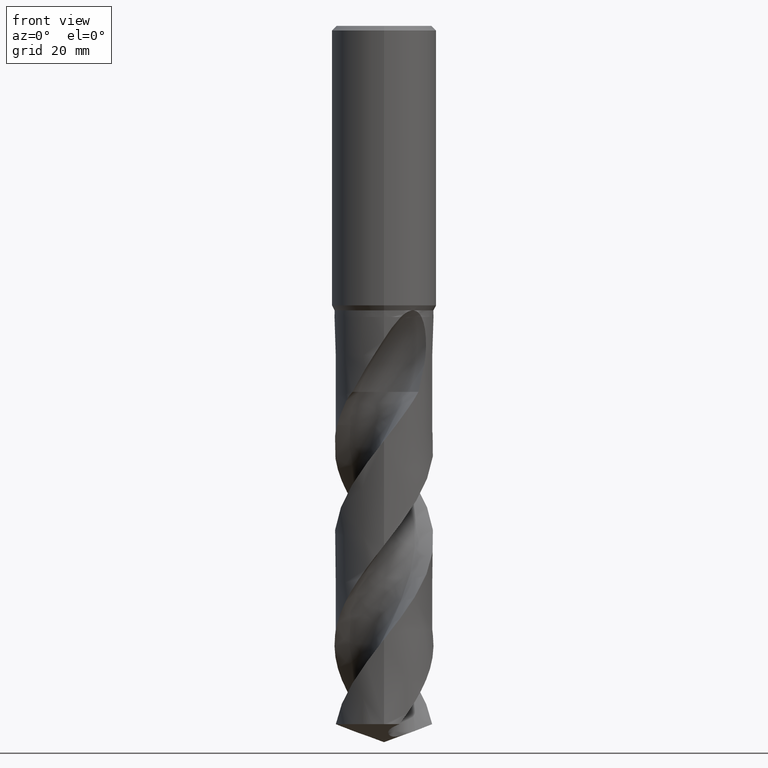
[diagram: clean part render]
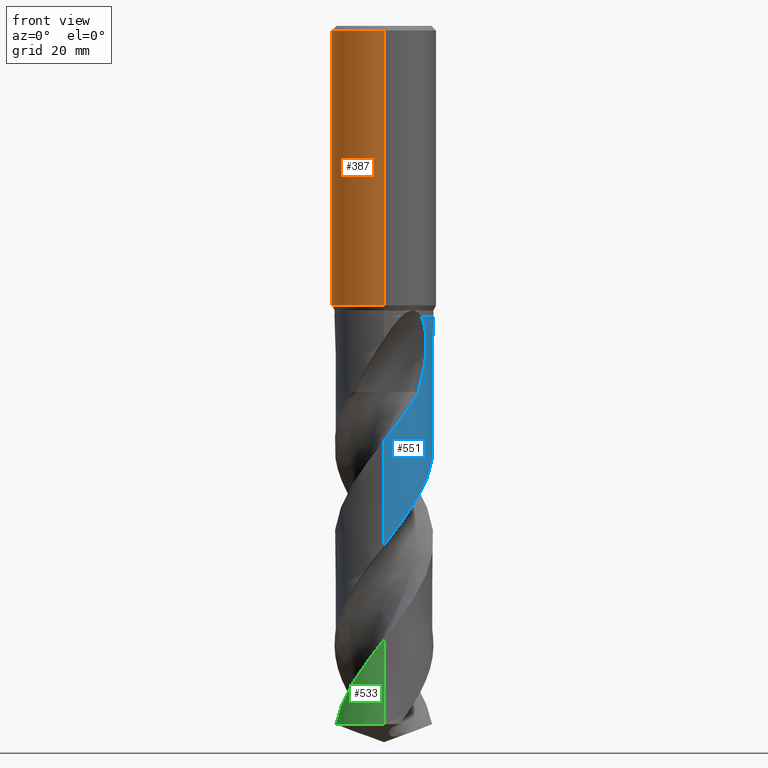
[diagram: same view with three faces highlighted in distinct colors, each labeled with its STEP entity id]
A machine part, front view with three faces highlighted in distinct colors.
Their STEP definitions:

[orange] entity #387 — the highlighted cylindrical surface (partial cylindrical patch) has radius 9 mm, axis along (-0, -0, 1).
#279=VERTEX_POINT('',#786);
#337=EDGE_CURVE('',#651,#607,#851,.T.);
#339=EDGE_CURVE('',#579,#441,#853,.T.);
#349=VERTEX_POINT('',#865);
#387=ADVANCED_FACE('',(#906),#907,.T.);
#391=VERTEX_POINT('',#911);
#437=EDGE_CURVE('',#607,#455,#960,.T.);
#441=VERTEX_POINT('',#964);
#447=EDGE_CURVE('',#441,#349,#971,.T.);
#455=VERTEX_POINT('',#980);
#477=EDGE_CURVE('',#693,#279,#1007,.T.);
#499=EDGE_CURVE('',#611,#693,#1029,.T.);
#545=EDGE_CURVE('',#455,#601,#1082,.T.);
#579=VERTEX_POINT('',#1118);
#601=VERTEX_POINT('',#1142);
#607=VERTEX_POINT('',#1148);
#611=VERTEX_POINT('',#1152);
#637=EDGE_CURVE('',#349,#653,#1181,.T.);
#641=EDGE_CURVE('',#653,#611,#1185,.T.);
#651=VERTEX_POINT('',#1195);
#653=VERTEX_POINT('',#1197);
#659=EDGE_CURVE('',#391,#579,#1203,.T.);
#671=EDGE_CURVE('',#601,#391,#1216,.T.);
#693=VERTEX_POINT('',#1242);
#749=EDGE_CURVE('',#651,#279,#1301,.T.);
#786=CARTESIAN_POINT('',(0.0,9.0,-48.0));
#851=LINE('',#2682,#2683);
#853=CIRCLE('',#2686,9.0);
#865=CARTESIAN_POINT('',(5.30368129032677E-016,9.0,-44.5000801551881));
#906=FACE_OUTER_BOUND('',#2991,.T.);
#907=CYLINDRICAL_SURFACE('',#2992,9.0);
#911=CARTESIAN_POINT('',(-0.486378944383046,8.9868479191795,-43.6432837483006));
#960=CIRCLE('',#3981,9.0);
#964=CARTESIAN_POINT('',(-1.0350734039088,8.94028092671146,-43.3171221986971));
#971=B_SPLINE_CURVE_WITH_KNOTS('',3,(#4001,#4002,#4003,#4004,#4005,#4006,#4007,#4008,#4009,#4010,#4011,#4012,#4013,#4014),.UNSPECIFIED.,.F.,.F.,(4,2,2,2,2,2,4),(3.12369059133893,3.5698502802927,4.01600996924647,4.46216965820024,4.90805548797838,5.35394131775651,5.80058045946212),.UNSPECIFIED.);
#980=CARTESIAN_POINT('',(0.0,9.0,-0.799999999999997));
#1007=LINE('',#4173,#4174);
#1029=B_SPLINE_CURVE_WITH_KNOTS('',3,(#4294,#4295,#4296,#4297,#4298,#4299,#4300,#4301,#4302,#4303,#4304,#4305,#4306,#4307,#4308,#4309),.UNSPECIFIED.,.F.,.F.,(4,2,2,2,2,2,2,4),(5.84212605398706,6.14961712011921,6.45715936065203,6.76470160118484,7.07224384171766,7.37978608225048,7.68719068283064,7.9945952834108),.UNSPECIFIED.);
#1082=LINE('',#4382,#4383);
#1118=CARTESIAN_POINT('',(-0.562333990228013,8.98241506964771,-43.3171221986971));
#1142=CARTESIAN_POINT('',(-3.96293483452168E-015,9.0,-44.0232688117743));
#1148=CARTESIAN_POINT('',(1.10214571844014E-015,-9.0,-0.799999999999997));
#1152=CARTESIAN_POINT('',(-1.337052752443,8.90012864722666,-45.3720803908795));
#1181=LINE('',#4615,#4616);
#1185=ELLIPSE('',#4635,10.0343558883857,9.0);
#1195=CARTESIAN_POINT('',(1.10214571844014E-015,-9.0,-48.0));
#1197=CARTESIAN_POINT('',(1.71597682159822E-015,9.0,-44.7128911336578));
#1203=B_SPLINE_CURVE_WITH_KNOTS('',3,(#4674,#4675,#4676,#4677,#4678,#4679,#4680,#4681,#4682,#4683,#4684,#4685,#4686,#4687,#4688,#4689,#4690,#4691,#4692,#4693,#4694,#4695,#4696,#4697,#4698,#4699,#4700),.UNSPECIFIED.,.F.,.F.,(4,2,3,2,2,2,2,2,2,2,2,2,4),(-0.541854963380013,-0.270927481690006,0.0,0.270927481690006,0.541854963380013,0.812958943580423,1.08406292378083,1.35487393624635,1.62568494871187,1.89658247681333,2.1674800049148,2.43837753301627,2.70927506111774),.UNSPECIFIED.);
#1216=B_SPLINE_CURVE_WITH_KNOTS('',3,(#4756,#4757,#4758,#4759,#4760,#4761,#4762,#4763,#4764,#4765,#4766,#4767,#4768,#4769,#4770,#4771,#4772,#4773,#4774,#4775,#4776,#4777,#4778,#4779,#4780,#4781,#4782),.UNSPECIFIED.,.F.,.F.,(4,2,3,2,2,2,2,2,2,2,2,2,4),(-0.541854963380013,-0.270927481690006,0.0,0.270927481690006,0.541854963380013,0.812958943580423,1.08406292378083,1.35487393624635,1.62568494871187,1.89658247681333,2.1674800049148,2.43837753301627,2.70927506111774),.UNSPECIFIED.);
#1242=CARTESIAN_POINT('',(8.69674988129566E-017,9.0,-46.0310253601033));
#1301=CIRCLE('',#5421,9.0);
#2682=CARTESIAN_POINT('',(1.10214571844014E-015,-9.0,-24.4));
#2683=VECTOR('',#5641,1.0);
#2686=AXIS2_PLACEMENT_3D('',#5642,#5643,#5644);
#2991=EDGE_LOOP('',(#5696,#5697,#5698,#5699,#5700,#5701,#5702,#5703,#5704,#5705,#5706,#5707));
#2992=AXIS2_PLACEMENT_3D('',#5708,#5709,#5710);
#3981=AXIS2_PLACEMENT_3D('',#5752,#5753,#5754);
#4001=CARTESIAN_POINT('',(-0.944943040271774,8.95025601034082,-42.873295414643));
#4002=CARTESIAN_POINT('',(-1.00535534992232,8.94387784802797,-43.0190431598199));
#4003=CARTESIAN_POINT('',(-1.03510901790186,8.94027680338021,-43.1775819644149));
#4004=CARTESIAN_POINT('',(-1.03510901790186,8.94027680338021,-43.4750217570507));
#4005=CARTESIAN_POINT('',(-1.00535534992232,8.94387784802797,-43.6335605616457));
#4006=CARTESIAN_POINT('',(-0.88453073062123,8.95663417265367,-43.9250560519995));
#4007=CARTESIAN_POINT('',(-0.793467054293891,8.96557334482349,-44.0580251702397));
#4008=CARTESIAN_POINT('',(-0.583479661408346,8.98168320725981,-44.2679344395132));
#4009=CARTESIAN_POINT('',(-0.450534542630435,8.98989837995421,-44.3589330592736));
#4010=CARTESIAN_POINT('',(-0.159125047888316,8.99977407908985,-44.4796536614785));
#4011=CARTESIAN_POINT('',(-0.000650772532612198,9.00122714079495,-44.5093686300866));
#4012=CARTESIAN_POINT('',(0.296817345477663,8.99633617828031,-44.5093686300866));
#4013=CARTESIAN_POINT('',(0.455407678070731,8.98965728579467,-44.4795637956187));
#4014=CARTESIAN_POINT('',(0.601144045560449,8.9799012152967,-44.4191280882646));
#4173=CARTESIAN_POINT('',(-1.10214571844014E-015,9.0,-24.4));
#4174=VECTOR('',#5845,1.0);
#4294=CARTESIAN_POINT('',(-1.37972167599854,8.89361389406915,-45.3116598497038));
#4295=CARTESIAN_POINT('',(-1.31997654876768,8.90288252749667,-45.4004745075963));
#4296=CARTESIAN_POINT('',(-1.25222527016166,8.91275656771046,-45.4820158876704));
#4297=CARTESIAN_POINT('',(-1.10789856600508,8.93184529050157,-45.6263591423228));
#4298=CARTESIAN_POINT('',(-1.02635161633353,8.94173240167489,-45.6941286367988));
#4299=CARTESIAN_POINT('',(-0.848706654054937,8.96033888861573,-45.8136513633258));
#4300=CARTESIAN_POINT('',(-0.752612156295056,8.96904039878896,-45.8654125998122));
#4301=CARTESIAN_POINT('',(-0.552036819579822,8.98361653687793,-45.948602883649));
#4302=CARTESIAN_POINT('',(-0.44739213308708,8.98949065583308,-45.9800979655266));
#4303=CARTESIAN_POINT('',(-0.236812635405349,8.99750086122647,-46.0214375430714));
#4304=CARTESIAN_POINT('',(-0.130875740487602,8.99963225233045,-46.0312723335086));
#4305=CARTESIAN_POINT('',(0.0741055220392617,9.00027822368032,-46.0312723335086));
#4306=CARTESIAN_POINT('',(0.180008098918982,8.99881598924858,-46.0214461889762));
#4307=CARTESIAN_POINT('',(0.390540563619322,8.99213935569284,-45.9801300336401));
#4308=CARTESIAN_POINT('',(0.495172471718919,8.98692967010796,-45.9486495564687));
#4309=CARTESIAN_POINT('',(0.595454366750798,8.9802802905654,-45.9070681979483));
#4382=CARTESIAN_POINT('',(-1.10214571844014E-015,9.0,-24.4));
#4383=VECTOR('',#5921,1.0);
#4615=CARTESIAN_POINT('',(-1.10214571844014E-015,9.0,-24.4));
#4616=VECTOR('',#6031,1.0);
#4635=AXIS2_PLACEMENT_3D('',#6032,#6033,#6034);
#4674=CARTESIAN_POINT('',(0.664932075041688,8.97540335225001,-42.8134055156165));
#4675=CARTESIAN_POINT('',(0.728692270346937,8.97067975406668,-42.8771869360812));
#4676=CARTESIAN_POINT('',(0.783987727658247,8.96586414078747,-42.9579708136456));
#4677=CARTESIAN_POINT('',(0.857343604339849,8.9591471969663,-43.135041642855));
#4678=CARTESIAN_POINT('',(0.875400981188567,8.957325109771,-43.2313328520234));
#4679=CARTESIAN_POINT('',(0.875400981188567,8.957325109771,-43.3216420125868));
#4680=CARTESIAN_POINT('',(0.875400981188567,8.957325109771,-43.4119511731501));
#4681=CARTESIAN_POINT('',(0.857343604339849,8.9591471969663,-43.5082423823186));
#4682=CARTESIAN_POINT('',(0.783987727658247,8.96586414078747,-43.6853132115279));
#4683=CARTESIAN_POINT('',(0.728692270346938,8.97067975406668,-43.7660970890924));
#4684=CARTESIAN_POINT('',(0.601130342497664,8.98013002767025,-43.8937014810878));
#4685=CARTESIAN_POINT('',(0.520325165375597,8.98538384805082,-43.9490345783732));
#4686=CARTESIAN_POINT('',(0.343202811107031,8.99389087129846,-44.0224436215851));
#4687=CARTESIAN_POINT('',(0.246880716317626,8.99706709356675,-44.0405166027747));
#4688=CARTESIAN_POINT('',(0.0662697068249511,9.00020872312346,-44.0405166027747));
#4689=CARTESIAN_POINT('',(-0.0300073000340085,9.00038564871037,-44.0224785355421));
#4690=CARTESIAN_POINT('',(-0.207105044312616,8.99805255398262,-43.9491281309434));
#4691=CARTESIAN_POINT('',(-0.287927260934903,8.99561983652438,-43.8938169265412));
#4692=CARTESIAN_POINT('',(-0.415574000165431,8.99062729777371,-43.7661974384748));
#4693=CARTESIAN_POINT('',(-0.470907536906384,8.98774703849931,-43.6853689338355));
#4694=CARTESIAN_POINT('',(-0.544295304958349,8.98360135804205,-43.5082419972217));
#4695=CARTESIAN_POINT('',(-0.562348199187247,8.98241418010052,-43.4119411886206));
#4696=CARTESIAN_POINT('',(-0.562348199187247,8.98241418010052,-43.231342836553));
#4697=CARTESIAN_POINT('',(-0.544295304958349,8.98360135804205,-43.1350420279518));
#4698=CARTESIAN_POINT('',(-0.470907536906384,8.98774703849931,-42.957915091338));
#4699=CARTESIAN_POINT('',(-0.415574000165432,8.99062729777371,-42.8770865866988));
#4700=CARTESIAN_POINT('',(-0.351740437394629,8.9931239658253,-42.8132666516862));
#4756=CARTESIAN_POINT('',(0.664932075041688,8.97540335225001,-42.8134055156165));
#4757=CARTESIAN_POINT('',(0.728692270346937,8.97067975406668,-42.8771869360812));
#4758=CARTESIAN_POINT('',(0.783987727658247,8.96586414078747,-42.9579708136456));
#4759=CARTESIAN_POINT('',(0.857343604339849,8.9591471969663,-43.135041642855));
#4760=CARTESIAN_POINT('',(0.875400981188567,8.957325109771,-43.2313328520234));
#4761=CARTESIAN_POINT('',(0.875400981188567,8.957325109771,-43.3216420125868));
#4762=CARTESIAN_POINT('',(0.875400981188567,8.957325109771,-43.4119511731501));
#4763=CARTESIAN_POINT('',(0.857343604339849,8.9591471969663,-43.5082423823186));
#4764=CARTESIAN_POINT('',(0.783987727658247,8.96586414078747,-43.6853132115279));
#4765=CARTESIAN_POINT('',(0.728692270346938,8.97067975406668,-43.7660970890924));
#4766=CARTESIAN_POINT('',(0.601130342497664,8.98013002767025,-43.8937014810878));
#4767=CARTESIAN_POINT('',(0.520325165375597,8.98538384805082,-43.9490345783732));
#4768=CARTESIAN_POINT('',(0.343202811107031,8.99389087129846,-44.0224436215851));
#4769=CARTESIAN_POINT('',(0.246880716317626,8.99706709356675,-44.0405166027747));
#4770=CARTESIAN_POINT('',(0.0662697068249511,9.00020872312346,-44.0405166027747));
#4771=CARTESIAN_POINT('',(-0.0300073000340085,9.00038564871037,-44.0224785355421));
#4772=CARTESIAN_POINT('',(-0.207105044312616,8.99805255398262,-43.9491281309434));
#4773=CARTESIAN_POINT('',(-0.287927260934903,8.99561983652438,-43.8938169265412));
#4774=CARTESIAN_POINT('',(-0.415574000165431,8.99062729777371,-43.7661974384748));
#4775=CARTESIAN_POINT('',(-0.470907536906384,8.98774703849931,-43.6853689338355));
#4776=CARTESIAN_POINT('',(-0.544295304958349,8.98360135804205,-43.5082419972217));
#4777=CARTESIAN_POINT('',(-0.562348199187247,8.98241418010052,-43.4119411886206));
#4778=CARTESIAN_POINT('',(-0.562348199187247,8.98241418010052,-43.231342836553));
#4779=CARTESIAN_POINT('',(-0.544295304958349,8.98360135804205,-43.1350420279518));
#4780=CARTESIAN_POINT('',(-0.470907536906384,8.98774703849931,-42.957915091338));
#4781=CARTESIAN_POINT('',(-0.415574000165432,8.99062729777371,-42.8770865866988));
#4782=CARTESIAN_POINT('',(-0.351740437394629,8.9931239658253,-42.8132666516862));
#5421=AXIS2_PLACEMENT_3D('',#6141,#6142,#6143);
#5641=DIRECTION('',(-0.0,-0.0,1.0));
#5642=CARTESIAN_POINT('',(0.0,0.0,-43.3171221986971));
#5643=DIRECTION('',(0.0,-0.0,1.0));
#5644=DIRECTION('',(0.0,1.0,0.0));
#5696=ORIENTED_EDGE('',*,*,#545,.T.);
#5697=ORIENTED_EDGE('',*,*,#671,.T.);
#5698=ORIENTED_EDGE('',*,*,#659,.T.);
#5699=ORIENTED_EDGE('',*,*,#339,.T.);
#5700=ORIENTED_EDGE('',*,*,#447,.T.);
#5701=ORIENTED_EDGE('',*,*,#637,.T.);
#5702=ORIENTED_EDGE('',*,*,#641,.T.);
#5703=ORIENTED_EDGE('',*,*,#499,.T.);
#5704=ORIENTED_EDGE('',*,*,#477,.T.);
#5705=ORIENTED_EDGE('',*,*,#749,.F.);
#5706=ORIENTED_EDGE('',*,*,#337,.T.);
#5707=ORIENTED_EDGE('',*,*,#437,.T.);
#5708=CARTESIAN_POINT('',(0.0,0.0,-24.4));
#5709=DIRECTION('',(-0.0,-0.0,1.0));
#5710=DIRECTION('',(0.0,1.0,0.0));
#5752=CARTESIAN_POINT('',(0.0,0.0,-0.799999999999997));
#5753=DIRECTION('',(0.0,0.0,-1.0));
#5754=DIRECTION('',(0.0,1.0,0.0));
#5845=DIRECTION('',(0.0,0.0,-1.0));
#5921=DIRECTION('',(0.0,0.0,-1.0));
#6031=DIRECTION('',(0.0,0.0,-1.0));
#6032=CARTESIAN_POINT('',(0.0,0.0,-44.7128911336578));
#6033=DIRECTION('',(-0.442195774284071,0.0,0.896918556617774));
#6034=DIRECTION('',(0.896918556617774,-0.0,0.442195774284071));
#6141=CARTESIAN_POINT('',(0.0,0.0,-48.0));
#6142=DIRECTION('',(0.0,0.0,-1.0));
#6143=DIRECTION('',(0.0,1.0,0.0));

[blue] entity #551 — the highlighted conical surface has half-angle 0 deg.
#281=EDGE_CURVE('',#701,#407,#788,.T.);
#283=EDGE_CURVE('',#635,#407,#790,.T.);
#287=EDGE_CURVE('',#577,#435,#794,.T.);
#345=EDGE_CURVE('',#647,#635,#860,.T.);
#359=EDGE_CURVE('',#701,#577,#876,.T.);
#407=VERTEX_POINT('',#929);
#421=VERTEX_POINT('',#943);
#433=EDGE_CURVE('',#421,#647,#956,.T.);
#435=VERTEX_POINT('',#958);
#551=ADVANCED_FACE('',(#1088),#1089,.T.);
#577=VERTEX_POINT('',#1116);
#615=VERTEX_POINT('',#1156);
#627=EDGE_CURVE('',#615,#435,#1170,.T.);
#635=VERTEX_POINT('',#1179);
#647=VERTEX_POINT('',#1191);
#685=EDGE_CURVE('',#615,#421,#1232,.T.);
#701=VERTEX_POINT('',#1251);
#788=LINE('',#1335,#1336);
#790=B_SPLINE_CURVE_WITH_KNOTS('',3,(#1339,#1340,#1341,#1342,#1343,#1344,#1345,#1346,#1347,#1348,#1349,#1350,#1351,#1352,#1353,#1354,#1355,#1356,#1357,#1358,#1359,#1360,#1361,#1362,#1363,#1364,#1365,#1366,#1367,#1368,#1369,#1370,#1371,#1372,#1373,#1374,#1375,#1376,#1377,#1378,#1379,#1380,#1381,#1382,#1383,#1384,#1385,#1386,#1387,#1388,#1389,#1390,#1391,#1392,#1393,#1394,#1395,#1396,#1397,#1398,#1399,#1400,#1401,#1402,#1403,#1404,#1405,#1406,#1407,#1408,#1409,#1410,#1411,#1412,#1413,#1414,#1415,#1416,#1417,#1418,#1419,#1420,#1421,#1422,#1423,#1424,#1425,#1426,#1427,#1428,#1429,#1430,#1431,#1432),.UNSPECIFIED.,.F.,.F.,(4,2,2,2,2,2,2,2,2,2,2,2,2,2,2,2,2,2,2,2,2,2,2,2,2,2,2,2,2,2,2,2,2,2,2,2,2,2,2,2,2,2,2,2,2,2,4),(0.0,0.253812338825228,0.303065578845852,1.36567609173848,1.71326171899132,1.92978585187693,2.12916142015396,2.82857112737733,3.25208007987304,3.41943771975682,3.53627295180757,3.6373375998749,4.26628033938587,5.24139310579664,6.45492818450494,8.06007027447404,10.177408946278,13.0142727150886,15.1197320047132,17.2291037807542,19.3406776822191,21.4411103067526,22.5002501525267,24.5896498980222,26.6998938477559,28.8068497019649,30.9105809895205,31.9688831722978,33.0134464588008,37.1711234728138,37.232298813097,40.7622732599164,42.8632804571982,44.9679447948737,46.0251401485894,47.0655865734501,49.1630739012381,50.221734318632,52.3147113796556,54.4216934030823,56.4229625905072,59.9033582008634,61.21571427922,63.5266076869395,67.0035430962804,68.7426584002347,70.4838142213351),.UNSPECIFIED.);
#794=B_SPLINE_CURVE_WITH_KNOTS('',3,(#1447,#1448,#1449,#1450,#1451,#1452,#1453,#1454,#1455,#1456,#1457,#1458,#1459,#1460),.UNSPECIFIED.,.F.,.F.,(4,2,2,2,2,2,4),(0.0,4.16452110111626,6.43844228222075,8.49803183599226,10.8907611385501,13.7649658544431,15.2376569579458),.UNSPECIFIED.);
#860=B_SPLINE_CURVE_WITH_KNOTS('',3,(#2694,#2695,#2696,#2697),.UNSPECIFIED.,.F.,.F.,(4,4),(0.0,4.88498068482119),.UNSPECIFIED.);
#876=B_SPLINE_CURVE_WITH_KNOTS('',3,(#2715,#2716,#2717,#2718,#2719,#2720,#2721,#2722,#2723,#2724,#2725,#2726,#2727,#2728,#2729,#2730,#2731,#2732,#2733,#2734,#2735,#2736,#2737,#2738,#2739,#2740,#2741,#2742,#2743,#2744,#2745,#2746,#2747,#2748,#2749,#2750,#2751,#2752,#2753,#2754,#2755,#2756,#2757,#2758,#2759,#2760,#2761,#2762,#2763,#2764,#2765,#2766,#2767,#2768,#2769,#2770,#2771,#2772,#2773,#2774,#2775,#2776,#2777,#2778,#2779,#2780,#2781,#2782,#2783,#2784,#2785,#2786,#2787,#2788,#2789,#2790,#2791,#2792,#2793,#2794,#2795,#2796),.UNSPECIFIED.,.F.,.F.,(4,2,2,2,2,2,2,2,2,2,2,2,2,2,2,2,2,2,2,2,2,2,2,2,2,2,2,2,2,2,2,2,2,2,2,2,2,2,2,2,4),(0.0,0.522563175301792,1.06852787307243,3.34920806965047,4.92623598936967,6.26377348729775,9.73336864023689,11.012614171981,14.2925918695649,15.8547283585742,18.8761859310243,20.5667064089351,24.0788633657407,25.7199507880094,27.7735149481977,28.8644727147083,30.4936091704982,32.6238901610239,33.7148471897368,35.1121894624974,38.2849557499195,39.9373098054168,42.8645548796656,45.3453979018586,48.0339367262249,49.3445585181741,52.9550462810325,54.3672966757152,58.3173140688549,58.4956757472931,62.8378637115809,63.9647954059369,65.9752223158462,67.8459837930121,68.9197282952559,69.8407088798231,70.6873788280934,71.0868918003438,71.6534679161684,72.9038088016349,73.738512102253),.UNSPECIFIED.);
#929=CARTESIAN_POINT('',(-1.28005001507875E-014,-8.4999303640152,-71.2263452663822));
#943=CARTESIAN_POINT('',(6.44231699010143,-5.54480403702876,-50.0));
#956=B_SPLINE_CURVE_WITH_KNOTS('',3,(#3967,#3968,#3969,#3970,#3971,#3972,#3973,#3974,#3975,#3976),.UNSPECIFIED.,.F.,.F.,(4,2,2,2,4),(0.0,1.59712686950709,3.8291409236054,5.00019645035937,6.22247536655508),.UNSPECIFIED.);
#958=CARTESIAN_POINT('',(-2.52028090589317E-012,8.49990546691994,-53.8217188850775));
#1088=FACE_OUTER_BOUND('',#4390,.T.);
#1089=CONICAL_SURFACE('',#4391,8.49995,1.43048719815093E-006);
#1116=CARTESIAN_POINT('',(5.41628966392335,6.55075712748483,-62.857));
#1156=CARTESIAN_POINT('',(-1.03745773833883E-015,8.4999,-50.0));
#1170=LINE('',#4575,#4576);
#1179=CARTESIAN_POINT('',(5.90809969899241,-6.11088951083082,-62.857));
#1191=CARTESIAN_POINT('',(6.91587389705831,-4.94157745294276,-58.2027032511228));
#1232=CIRCLE('',#4825,8.4999);
#1251=CARTESIAN_POINT('',(-5.81971100657443E-012,-8.49995609925247,-89.216885372497));
#1335=CARTESIAN_POINT('',(1.0443546940639E-015,-8.49995,-84.9531265043686));
#1336=VECTOR('',#5552,1.0);
#1339=CARTESIAN_POINT('',(5.90809969899241,-6.11088951083082,-62.857));
#1340=CARTESIAN_POINT('',(5.87221941995721,-6.145579239069,-62.925316061492));
#1341=CARTESIAN_POINT('',(5.83596911618663,-6.18001599994499,-62.9936082539407));
#1342=CARTESIAN_POINT('',(5.7921701352408,-6.22089044168041,-63.0750555366095));
#1343=CARTESIAN_POINT('',(5.78503677068821,-6.22752461877753,-63.0882874430771));
#1344=CARTESIAN_POINT('',(5.62363951824768,-6.37711014528268,-63.3868998386653));
#1345=CARTESIAN_POINT('',(5.46527350919119,-6.51362064005351,-63.6634205156913));
#1346=CARTESIAN_POINT('',(5.23819320632168,-6.69440748787941,-64.0351454182138));
#1347=CARTESIAN_POINT('',(5.18148608411984,-6.73840222266121,-64.1261825128578));
#1348=CARTESIAN_POINT('',(5.08793784149738,-6.80907929835932,-64.273862093571));
#1349=CARTESIAN_POINT('',(5.05175264424232,-6.83597005995964,-64.3303985998281));
#1350=CARTESIAN_POINT('',(4.98165780018234,-6.88719600824686,-64.4389484273218));
#1351=CARTESIAN_POINT('',(4.94784040808438,-6.91153154019764,-64.4908950024641));
#1352=CARTESIAN_POINT('',(4.79437972609713,-7.02025642589189,-64.7250587361678));
#1353=CARTESIAN_POINT('',(4.67361438146723,-7.1012888943086,-64.905627342545));
#1354=CARTESIAN_POINT('',(4.47099726746775,-7.22959434886809,-65.2069165852423));
#1355=CARTESIAN_POINT('',(4.3940433507114,-7.27661598536318,-65.3207425051398));
#1356=CARTESIAN_POINT('',(4.28597798060233,-7.34032231426754,-65.4798705432019));
#1357=CARTESIAN_POINT('',(4.2552933165863,-7.35815281245432,-65.5249744595825));
#1358=CARTESIAN_POINT('',(4.20306133413856,-7.38806924691532,-65.6016243126691));
#1359=CARTESIAN_POINT('',(4.18155252927505,-7.4002641132044,-65.633151923513));
#1360=CARTESIAN_POINT('',(4.14137309805008,-7.42281396434356,-65.6919822573237));
#1361=CARTESIAN_POINT('',(4.12269627746965,-7.43320349279,-65.7193017923561));
#1362=CARTESIAN_POINT('',(3.98754937621571,-7.50771708964857,-65.9167626033651));
#1363=CARTESIAN_POINT('',(3.86979129201419,-7.56908062718017,-66.0875942848129));
#1364=CARTESIAN_POINT('',(3.56638341412379,-7.71828068779252,-66.5227065799647));
#1365=CARTESIAN_POINT('',(3.37838864742629,-7.80241699406583,-66.7872003345984));
#1366=CARTESIAN_POINT('',(2.94937044697491,-7.97595010168719,-67.3800236145523));
#1367=CARTESIAN_POINT('',(2.70750701342107,-8.06127493972823,-67.7063472645214));
#1368=CARTESIAN_POINT('',(2.13629072857626,-8.23410653828333,-68.467147457639));
#1369=CARTESIAN_POINT('',(1.80569917522044,-8.31283734512631,-68.9007158760712));
#1370=CARTESIAN_POINT('',(1.03094803126507,-8.44903114569381,-69.906276999625));
#1371=CARTESIAN_POINT('',(0.584963377657782,-8.49155880373193,-70.4778408960726));
#1372=CARTESIAN_POINT('',(-0.461183105342847,-8.50853021261238,-71.8165189970591));
#1373=CARTESIAN_POINT('',(-1.05979886393022,-8.45489361666248,-72.5794881450679));
#1374=CARTESIAN_POINT('',(-2.08462972373293,-8.25234823191746,-73.9141452592203));
#1375=CARTESIAN_POINT('',(-2.51355841414536,-8.13194929318475,-74.4820477948442));
#1376=CARTESIAN_POINT('',(-3.34902310899705,-7.82504840117884,-75.6208809298899));
#1377=CARTESIAN_POINT('',(-3.75461415872712,-7.63875563618499,-76.1899767533334));
#1378=CARTESIAN_POINT('',(-4.53356750927657,-7.2038131404849,-77.3298419294142));
#1379=CARTESIAN_POINT('',(-4.9053818907949,-6.95594712349335,-77.8984444527642));
#1380=CARTESIAN_POINT('',(-5.60469292730857,-6.40572575023969,-79.0363518291564));
#1381=CARTESIAN_POINT('',(-5.93147083560172,-6.10440081622136,-79.6033766891432));
#1382=CARTESIAN_POINT('',(-6.38543437784608,-5.61474558981044,-80.4568345419361));
#1383=CARTESIAN_POINT('',(-6.53109397402557,-5.44462986175383,-80.7427455674731));
#1384=CARTESIAN_POINT('',(-6.94369905911902,-4.92231872040457,-81.5930334774485));
#1385=CARTESIAN_POINT('',(-7.18995846551699,-4.55503722927414,-82.156486580894));
#1386=CARTESIAN_POINT('',(-7.62520826627304,-3.78206282165088,-83.2912441824827));
#1387=CARTESIAN_POINT('',(-7.81310566916568,-3.3769065275112,-83.8605722994067));
#1388=CARTESIAN_POINT('',(-8.12341948015603,-2.54117726527552,-84.9995536923245));
#1389=CARTESIAN_POINT('',(-8.24534222333018,-2.11225380917475,-85.5672134947889));
#1390=CARTESIAN_POINT('',(-8.42072742202597,-1.24018382942739,-86.7049796632484));
#1391=CARTESIAN_POINT('',(-8.47407156643389,-0.798154001610021,-87.2728414037304));
#1392=CARTESIAN_POINT('',(-8.50189812166223,-0.13036648646712,-88.1270011270703));
#1393=CARTESIAN_POINT('',(-8.50238619341968,0.0934482672083988,-88.412692293229));
#1394=CARTESIAN_POINT('',(-8.48580238755177,0.537757980361258,-88.9806329050842));
#1395=CARTESIAN_POINT('',(-8.46896952717347,0.757983309321364,-89.2625165778892));
#1396=CARTESIAN_POINT('',(-8.34257238832857,1.85007428240777,-90.668147889667));
#1397=CARTESIAN_POINT('',(-8.10676818565891,2.702313422458,-91.7854907198422));
#1398=CARTESIAN_POINT('',(-7.73909974100459,3.51508839003729,-92.9251221288822));
#1399=CARTESIAN_POINT('',(-7.73374133167869,3.5268621497238,-92.9416479860593));
#1400=CARTESIAN_POINT('',(-7.41760635866252,4.21730439565658,-93.9118590164474));
#1401=CARTESIAN_POINT('',(-7.01869939347152,4.85228760205054,-94.8638005066901));
#1402=CARTESIAN_POINT('',(-6.25828644975488,5.76894744472072,-96.3853537285009));
#1403=CARTESIAN_POINT('',(-5.94829375529442,6.08805650388338,-96.9518425653425));
#1404=CARTESIAN_POINT('',(-5.28095473012102,6.67524250174718,-98.0888494658464));
#1405=CARTESIAN_POINT('',(-4.92433332623784,6.942517686382,-98.6571727359034));
#1406=CARTESIAN_POINT('',(-4.35942156407616,7.30033823528949,-99.5116815189191));
#1407=CARTESIAN_POINT('',(-4.16586953384112,7.41249326951101,-99.7972045671908));
#1408=CARTESIAN_POINT('',(-3.7734554819489,7.61964571150117,-100.364016614331));
#1409=CARTESIAN_POINT('',(-3.57497101094187,7.71475842321191,-100.64498384878));
#1410=CARTESIAN_POINT('',(-2.96604560489068,7.97801725971756,-101.493309392303));
#1411=CARTESIAN_POINT('',(-2.54580644724933,8.1218950495146,-102.059999387661));
#1412=CARTESIAN_POINT('',(-1.89938895199495,8.28806544774412,-102.913165550916));
#1413=CARTESIAN_POINT('',(-1.68040280270101,8.33522647762051,-103.199161154255));
#1414=CARTESIAN_POINT('',(-1.02356420955399,8.44973282036625,-104.050896870078));
#1415=CARTESIAN_POINT('',(-0.582266586388124,8.49154496656705,-104.615554323127));
#1416=CARTESIAN_POINT('',(0.305428698054603,8.50615891983376,-105.751205644429));
#1417=CARTESIAN_POINT('',(0.750808229081608,8.47847962047964,-106.320127534843));
#1418=CARTESIAN_POINT('',(1.61128219980835,8.35659570851312,-107.43050734003));
#1419=CARTESIAN_POINT('',(2.02528973771725,8.26601170589115,-107.970027618479));
#1420=CARTESIAN_POINT('',(3.1358796079831,7.93457604604338,-109.452225054721));
#1421=CARTESIAN_POINT('',(3.81101649213268,7.63336306339839,-110.389914691239));
#1422=CARTESIAN_POINT('',(4.67583907199514,7.10376210297291,-111.685340037973));
#1423=CARTESIAN_POINT('',(4.90530896859703,6.94728399852131,-112.039817871555));
#1424=CARTESIAN_POINT('',(5.51639897976227,6.48520887420825,-113.0196031138));
#1425=CARTESIAN_POINT('',(5.88014165366469,6.15734064772561,-113.643654202075));
#1426=CARTESIAN_POINT('',(6.71573445938124,5.2621268736596,-115.208245525064));
#1427=CARTESIAN_POINT('',(7.14555889956199,4.66166377353577,-116.144133002908));
#1428=CARTESIAN_POINT('',(7.66623039907614,3.68971653077916,-117.554947437413));
#1429=CARTESIAN_POINT('',(7.81869723286407,3.35459594488495,-118.024733464662));
#1430=CARTESIAN_POINT('',(8.07948876368433,2.6659974596805,-118.965563842085));
#1431=CARTESIAN_POINT('',(8.18743640933608,2.31335529630479,-119.435593744299));
#1432=CARTESIAN_POINT('',(8.27216693933794,1.95480283602327,-119.906253008737));
#1447=CARTESIAN_POINT('',(5.41628966392335,6.55075712748484,-62.857));
#1448=CARTESIAN_POINT('',(4.85560486769929,7.0143397076693,-61.6747352356441));
#1449=CARTESIAN_POINT('',(4.21094235285372,7.42643435002595,-60.5724823536233));
#1450=CARTESIAN_POINT('',(3.08684150523683,7.93154221144858,-58.7310997567797));
#1451=CARTESIAN_POINT('',(2.68233689149408,8.07684268812841,-58.0832404550152));
#1452=CARTESIAN_POINT('',(1.89926806888016,8.29399836131771,-56.8291577922511));
#1453=CARTESIAN_POINT('',(1.52420001308665,8.3707187806225,-56.2287792191156));
#1454=CARTESIAN_POINT('',(0.712337952620786,8.48144427690677,-54.9348106618254));
#1455=CARTESIAN_POINT('',(0.268761995696151,8.50743926841456,-54.2310918227217));
#1456=CARTESIAN_POINT('',(-0.716305928892583,8.48671723791442,-52.7256088583031));
#1457=CARTESIAN_POINT('',(-1.3003510078676,8.42262841217451,-51.8689752644792));
#1458=CARTESIAN_POINT('',(-2.21282389263096,8.21293743140772,-50.7245682904819));
#1459=CARTESIAN_POINT('',(-2.54590422194253,8.11801849245332,-50.3397558310477));
#1460=CARTESIAN_POINT('',(-2.89210082490989,7.99275001664356,-50.0));
#2694=CARTESIAN_POINT('',(6.91587389711092,-4.94157745286912,-58.2027032511518));
#2695=CARTESIAN_POINT('',(6.64184714296793,-5.32508928595671,-59.7613168943238));
#2696=CARTESIAN_POINT('',(6.31157261576034,-5.72080279917019,-61.3292052888227));
#2697=CARTESIAN_POINT('',(5.90809969899241,-6.11088951083082,-62.857));
#2715=CARTESIAN_POINT('',(-2.64912910063132,8.07664008162974,-119.906253008737));
#2716=CARTESIAN_POINT('',(-2.75098393789155,8.04323159986892,-119.768954687375));
#2717=CARTESIAN_POINT('',(-2.85219617674455,8.00789985648184,-119.631692706728));
#2718=CARTESIAN_POINT('',(-3.05772794250798,7.9317607291798,-119.350942802598));
#2719=CARTESIAN_POINT('',(-3.16198306728364,7.89077964501866,-119.207375954525));
#2720=CARTESIAN_POINT('',(-3.69763171204423,7.66789488952842,-118.464714365115));
#2721=CARTESIAN_POINT('',(-4.11479117343433,7.45243635435459,-117.868787973919));
#2722=CARTESIAN_POINT('',(-4.78767829828258,7.03089082272056,-116.857213968056));
#2723=CARTESIAN_POINT('',(-5.05228284409826,6.84318204686882,-116.444428248773));
#2724=CARTESIAN_POINT('',(-5.51970673946351,6.46978452148227,-115.678887819896));
#2725=CARTESIAN_POINT('',(-5.72543703876655,6.2884346645319,-115.32633593886));
#2726=CARTESIAN_POINT('',(-6.43220385533321,5.60199055644484,-114.063883065258));
#2727=CARTESIAN_POINT('',(-6.87819857283365,5.04445032041045,-113.163423836587));
#2728=CARTESIAN_POINT('',(-7.38661888964913,4.21384484394224,-111.917470398383));
#2729=CARTESIAN_POINT('',(-7.51299129901989,3.98415082708518,-111.580852257714));
#2730=CARTESIAN_POINT('',(-7.92499066815545,3.14577811095333,-110.384772635004));
#2731=CARTESIAN_POINT('',(-8.14888461557925,2.50951463535903,-109.533296390183));
#2732=CARTESIAN_POINT('',(-8.3653304161513,1.54063093635362,-108.264186778533));
#2733=CARTESIAN_POINT('',(-8.41735098686687,1.2247963699593,-107.853258739333));
#2734=CARTESIAN_POINT('',(-8.51743992586204,0.292052446657541,-106.652029041711));
#2735=CARTESIAN_POINT('',(-8.51616776984247,-0.328457427971862,-105.867321190093));
#2736=CARTESIAN_POINT('',(-8.40895781231021,-1.28804496312348,-104.633909797529));
#2737=CARTESIAN_POINT('',(-8.34953489065717,-1.62918300302829,-104.189792572952));
#2738=CARTESIAN_POINT('',(-8.10370455963449,-2.66359007601743,-102.828061385402));
#2739=CARTESIAN_POINT('',(-7.84999839845789,-3.3380502592732,-101.919732658506));
#2740=CARTESIAN_POINT('',(-7.3576232409463,-4.269362710984,-100.572032332072));
#2741=CARTESIAN_POINT('',(-7.18355765826639,-4.55616286091684,-100.141325594305));
#2742=CARTESIAN_POINT('',(-6.75407646380681,-5.17766983383997,-99.1749892514379));
#2743=CARTESIAN_POINT('',(-6.48991386746564,-5.50521537641376,-98.6402250522369));
#2744=CARTESIAN_POINT('',(-6.04953915686845,-5.97515385840165,-97.818724362341));
#2745=CARTESIAN_POINT('',(-5.89052361728535,-6.13195989821913,-97.5339098452703));
#2746=CARTESIAN_POINT('',(-5.47952088824871,-6.50655198650557,-96.8225058393514));
#2747=CARTESIAN_POINT('',(-5.22062554508144,-6.71605927598768,-96.3949120266695));
#2748=CARTESIAN_POINT('',(-4.5957404263805,-7.16367860108886,-95.4116034816486));
#2749=CARTESIAN_POINT('',(-4.22241191300582,-7.38992324443792,-94.8570129614707));
#2750=CARTESIAN_POINT('',(-3.63359329478318,-7.68741107489288,-94.0154544857439));
#2751=CARTESIAN_POINT('',(-3.43046906985752,-7.7801653970718,-93.7306265759565));
#2752=CARTESIAN_POINT('',(-2.9598553304995,-7.97309135713757,-93.0797900043595));
#2753=CARTESIAN_POINT('',(-2.69058327461053,-8.06793830962377,-92.7131307184601));
#2754=CARTESIAN_POINT('',(-1.7952763412624,-8.33346332443637,-91.5177410647782));
#2755=CARTESIAN_POINT('',(-1.15458997454867,-8.44612208933449,-90.6959683995317));
#2756=CARTESIAN_POINT('',(-0.169861249121352,-8.50497082189835,-89.4348716702737));
#2757=CARTESIAN_POINT('',(0.167828130489374,-8.5049941351686,-89.001393748922));
#2758=CARTESIAN_POINT('',(1.10132068544794,-8.44947336714176,-87.8044926139739));
#2759=CARTESIAN_POINT('',(1.69281404687216,-8.35114169339034,-87.0458679238112));
#2760=CARTESIAN_POINT('',(2.75808210787893,-8.05600868729938,-85.6338237300581));
#2761=CARTESIAN_POINT('',(3.23331806582053,-7.87730450894491,-84.9832775579918));
#2762=CARTESIAN_POINT('',(4.18514891075984,-7.41859975286645,-83.6335503256732));
#2763=CARTESIAN_POINT('',(4.65569066701613,-7.13267553255831,-82.9362905579461));
#2764=CARTESIAN_POINT('',(5.30935617182459,-6.64314994998624,-81.8917493924021));
#2765=CARTESIAN_POINT('',(5.51559157292591,-6.47292160437663,-81.5483669766164));
#2766=CARTESIAN_POINT('',(6.25842108832369,-5.79853653978986,-80.263291544769));
#2767=CARTESIAN_POINT('',(6.7367591245003,-5.23516288858,-79.332212705453));
#2768=CARTESIAN_POINT('',(7.29300318571342,-4.37538428407858,-78.0214456427808));
#2769=CARTESIAN_POINT('',(7.43687298477419,-4.12611317795005,-77.6516924331529));
#2770=CARTESIAN_POINT('',(7.93463629346085,-3.15264163438815,-76.2522001342055));
#2771=CARTESIAN_POINT('',(8.19720651438159,-2.38776656480382,-75.236707892953));
#2772=CARTESIAN_POINT('',(8.35521161020176,-1.56225640093467,-74.1590311233275));
#2773=CARTESIAN_POINT('',(8.36180303755672,-1.52658230875423,-74.1124837277955));
#2774=CARTESIAN_POINT('',(8.52313888481921,-0.620992551514189,-72.9328101341149));
#2775=CARTESIAN_POINT('',(8.54156028077326,0.267742020098913,-71.8152344211001));
#2776=CARTESIAN_POINT('',(8.39180066689006,1.37079899979001,-70.3904551652391));
#2777=CARTESIAN_POINT('',(8.35177456552572,1.59661920103784,-70.0962977632622));
#2778=CARTESIAN_POINT('',(8.21509414085736,2.21995918028548,-69.2787007725546));
#2779=CARTESIAN_POINT('',(8.09924701346337,2.61042450283184,-68.7562655870298));
#2780=CARTESIAN_POINT('',(7.82487795329696,3.34087859852404,-67.762109545773));
#2781=CARTESIAN_POINT('',(7.67227699540505,3.67763747282057,-67.3045217511726));
#2782=CARTESIAN_POINT('',(7.39446664182361,4.19722877266933,-66.5624245072427));
#2783=CARTESIAN_POINT('',(7.28587949487903,4.38303317727204,-66.2898344627078));
#2784=CARTESIAN_POINT('',(7.07115962614547,4.72032466500849,-65.7570183127307));
#2785=CARTESIAN_POINT('',(6.97154362709297,4.86537813491081,-65.5109690500599));
#2786=CARTESIAN_POINT('',(6.79091421465804,5.11408122928796,-65.0843006024309));
#2787=CARTESIAN_POINT('',(6.64490713867723,5.30200347413863,-64.7491741856983));
#2788=CARTESIAN_POINT('',(6.5215720744998,5.45175368948333,-64.4913149124416));
#2789=CARTESIAN_POINT('',(6.48072574028712,5.50027567585758,-64.4096832088114));
#2790=CARTESIAN_POINT('',(6.37855552887731,5.61881645499542,-64.2145337521456));
#2791=CARTESIAN_POINT('',(6.31596036616169,5.68916710510951,-64.1022425780468));
#2792=CARTESIAN_POINT('',(6.10599254835031,5.91700521844778,-63.7482741264122));
#2793=CARTESIAN_POINT('',(5.94864593958446,6.07592965925596,-63.5159775066726));
#2794=CARTESIAN_POINT('',(5.6626117802498,6.34096339760089,-63.1428566126995));
#2795=CARTESIAN_POINT('',(5.54239603451797,6.4464902614138,-62.9980911841873));
#2796=CARTESIAN_POINT('',(5.41628966392336,6.55075712748483,-62.857));
#3967=CARTESIAN_POINT('',(6.44231699010143,-5.54480403702876,-50.0));
#3968=CARTESIAN_POINT('',(6.65234662312343,-5.30077876418282,-50.4239846973768));
#3969=CARTESIAN_POINT('',(6.81775846566659,-5.08059134191573,-50.9508608950494));
#3970=CARTESIAN_POINT('',(7.11425766056338,-4.66104842509501,-52.4007338547197));
#3971=CARTESIAN_POINT('',(7.21233829846752,-4.49785061358491,-53.4254033619091));
#3972=CARTESIAN_POINT('',(7.22041583160893,-4.48486885981171,-55.1722359946098));
#3973=CARTESIAN_POINT('',(7.19717918416343,-4.52293833382547,-55.7734184922766));
#3974=CARTESIAN_POINT('',(7.0988033973917,-4.67590496165904,-56.9899016127423));
#3975=CARTESIAN_POINT('',(7.02165837713949,-4.7935276758723,-57.6010280896414));
#3976=CARTESIAN_POINT('',(6.91587389705831,-4.94157745294276,-58.2027032511228));
#4390=EDGE_LOOP('',(#5926,#5927,#5928,#5929,#5930,#5931,#5932,#5933));
#4391=AXIS2_PLACEMENT_3D('',#5934,#5935,#5936);
#4575=CARTESIAN_POINT('',(-1.0374638613706E-015,8.49995,-84.9531265043686));
#4576=VECTOR('',#6015,1.0);
#4825=AXIS2_PLACEMENT_3D('',#6064,#6065,#6066);
#5552=DIRECTION('',(-1.7517837119166E-022,1.43048719815044E-006,0.999999999998977));
#5926=ORIENTED_EDGE('',*,*,#627,.F.);
#5927=ORIENTED_EDGE('',*,*,#685,.T.);
#5928=ORIENTED_EDGE('',*,*,#433,.T.);
#5929=ORIENTED_EDGE('',*,*,#345,.T.);
#5930=ORIENTED_EDGE('',*,*,#283,.T.);
#5931=ORIENTED_EDGE('',*,*,#281,.F.);
#5932=ORIENTED_EDGE('',*,*,#359,.T.);
#5933=ORIENTED_EDGE('',*,*,#287,.T.);
#5934=CARTESIAN_POINT('',(0.0,0.0,-84.9531265043686));
#5935=DIRECTION('',(0.0,-0.0,-1.0));
#5936=DIRECTION('',(0.0,1.0,0.0));
#6015=DIRECTION('',(-1.7517837119166E-022,1.43048719815044E-006,-0.999999999998977));
#6064=CARTESIAN_POINT('',(0.0,0.0,-50.0));
#6065=DIRECTION('',(0.0,0.0,-1.0));
#6066=DIRECTION('',(0.0,1.0,0.0));

[green] entity #533 — the highlighted conical surface has half-angle 0 deg.
#379=EDGE_CURVE('',#519,#491,#898,.T.);
#483=EDGE_CURVE('',#519,#739,#1013,.T.);
#491=VERTEX_POINT('',#1021);
#519=VERTEX_POINT('',#1053);
#533=ADVANCED_FACE('',(#1068),#1069,.T.);
#739=VERTEX_POINT('',#1291);
#763=EDGE_CURVE('',#491,#739,#1316,.T.);
#898=LINE('',#2981,#2982);
#1013=CIRCLE('',#4181,8.5);
#1021=CARTESIAN_POINT('',(1.47295884342451E-014,-8.49997919241052,-105.3604468587));
#1053=CARTESIAN_POINT('',(1.03746998619684E-015,-8.5,-119.906253008737));
#1068=FACE_OUTER_BOUND('',#4365,.T.);
#1069=CONICAL_SURFACE('',#4366,8.49995,1.43048719815093E-006);
#1291=CARTESIAN_POINT('',(-8.27216693933796,-1.95480283602314,-119.906253008737));
#1316=B_SPLINE_CURVE_WITH_KNOTS('',3,(#5454,#5455,#5456,#5457,#5458,#5459,#5460,#5461,#5462,#5463,#5464,#5465,#5466,#5467,#5468,#5469,#5470,#5471,#5472,#5473,#5474,#5475,#5476,#5477,#5478,#5479,#5480,#5481,#5482,#5483,#5484,#5485,#5486,#5487,#5488,#5489,#5490,#5491,#5492,#5493,#5494,#5495,#5496,#5497,#5498,#5499,#5500,#5501,#5502,#5503,#5504,#5505,#5506,#5507,#5508,#5509,#5510,#5511,#5512,#5513,#5514,#5515,#5516,#5517,#5518,#5519,#5520,#5521,#5522,#5523,#5524,#5525,#5526,#5527,#5528,#5529,#5530,#5531,#5532,#5533,#5534,#5535,#5536,#5537,#5538,#5539,#5540,#5541,#5542,#5543,#5544,#5545,#5546,#5547),.UNSPECIFIED.,.F.,.F.,(4,2,2,2,2,2,2,2,2,2,2,2,2,2,2,2,2,2,2,2,2,2,2,2,2,2,2,2,2,2,2,2,2,2,2,2,2,2,2,2,2,2,2,2,2,2,4),(0.0,0.253812338952546,0.303065578360708,1.36567609327622,1.71326172082814,1.92978585357073,2.12916142180026,2.82857112846694,3.25207999522695,3.4194376655401,3.53627290174181,3.63733756199075,4.26628031347629,5.2413929826984,6.45492809797782,8.06006967037196,10.1774083643199,13.0142745039423,15.1197337604657,17.2291055768132,19.3406794450398,21.4411121107762,22.5002519598631,24.5896516441418,26.699895634037,28.8068514497284,30.9105827809901,31.9688849657346,33.0134482178288,37.1711254169557,37.2323007257813,40.7622776718615,42.8632847307241,44.9679491531301,46.0251444994689,47.0655908240784,49.1630782395083,50.2217386611367,52.3147155685225,54.4216976726653,56.4229663295075,59.9033612358468,61.2157169828315,63.526609897052,67.0035445281928,68.7426594625338,70.4838149129698),.UNSPECIFIED.);
#2981=CARTESIAN_POINT('',(1.03746386316507E-015,-8.49995,-84.9531265043686));
#2982=VECTOR('',#5691,1.0);
#4181=AXIS2_PLACEMENT_3D('',#5846,#5847,#5848);
#4365=EDGE_LOOP('',(#5905,#5906,#5907));
#4366=AXIS2_PLACEMENT_3D('',#5908,#5909,#5910);
#5454=CARTESIAN_POINT('',(-5.90809969899241,6.11088951083082,-62.857));
#5455=CARTESIAN_POINT('',(-5.87221941993922,6.1455792390864,-62.9253160615262));
#5456=CARTESIAN_POINT('',(-5.83596911616855,6.18001599996186,-62.9936082539743));
#5457=CARTESIAN_POINT('',(-5.79217013533639,6.22089044159121,-63.0750555364318));
#5458=CARTESIAN_POINT('',(-5.78503677087336,6.2275246186053,-63.0882874427338));
#5459=CARTESIAN_POINT('',(-5.62363951871176,6.37711014486615,-63.3868998378269));
#5460=CARTESIAN_POINT('',(-5.46527350917205,6.51362064006598,-63.6634205157183));
#5461=CARTESIAN_POINT('',(-5.23819320647497,6.69440748775832,-64.0351454179643));
#5462=CARTESIAN_POINT('',(-5.18148608425667,6.73840222255741,-64.1261825126412));
#5463=CARTESIAN_POINT('',(-5.08793784152229,6.80907929834081,-64.2738620935321));
#5464=CARTESIAN_POINT('',(-5.05175264421604,6.83597005997861,-64.3303985998685));
#5465=CARTESIAN_POINT('',(-4.98165780024452,6.88719600820162,-64.4389484272258));
#5466=CARTESIAN_POINT('',(-4.94784040815908,6.91153154014446,-64.49089500235));
#5467=CARTESIAN_POINT('',(-4.79437972603628,7.02025642593573,-64.7250587362615));
#5468=CARTESIAN_POINT('',(-4.6736143812172,7.10128889446571,-64.9056273429166));
#5469=CARTESIAN_POINT('',(-4.47099728309981,7.22959433896977,-65.2069165619978));
#5470=CARTESIAN_POINT('',(-4.39404338193618,7.27661596628485,-65.320742458954));
#5471=CARTESIAN_POINT('',(-4.28597802215397,7.34032229003719,-65.4798704820984));
#5472=CARTESIAN_POINT('',(-4.25529335255793,7.35815279168282,-65.5249744067454));
#5473=CARTESIAN_POINT('',(-4.20306136377206,7.38806923005985,-65.6016242692165));
#5474=CARTESIAN_POINT('',(-4.18155255818846,7.40026409687058,-65.6331518811483));
#5475=CARTESIAN_POINT('',(-4.14137312362896,7.42281395008058,-65.6919822198973));
#5476=CARTESIAN_POINT('',(-4.12269630077209,7.43320347987272,-65.7193017582859));
#5477=CARTESIAN_POINT('',(-3.98754939567194,7.50771707935226,-65.916762575083));
#5478=CARTESIAN_POINT('',(-3.86979130998103,7.56908061802205,-66.0875942588663));
#5479=CARTESIAN_POINT('',(-3.56638345071463,7.71828067030024,-66.5227065277712));
#5480=CARTESIAN_POINT('',(-3.37838870452789,7.80241696876145,-66.787200254416));
#5481=CARTESIAN_POINT('',(-2.94937052056767,7.97595007466696,-67.3800235144525));
#5482=CARTESIAN_POINT('',(-2.70750708223362,8.06127491680351,-67.7063471721452));
#5483=CARTESIAN_POINT('',(-2.13629090038215,8.23410648908387,-68.4671472297713));
#5484=CARTESIAN_POINT('',(-1.8056994583958,8.31283727905234,-68.9007155051148));
#5485=CARTESIAN_POINT('',(-1.03094842958208,8.44903109716759,-69.9062764871532));
#5486=CARTESIAN_POINT('',(-0.584963776621055,8.49155877630995,-70.4778403848533));
#5487=CARTESIAN_POINT('',(0.461183202719636,8.50853024226106,-71.8165191225964));
#5488=CARTESIAN_POINT('',(1.05979945749143,8.45489357746644,-72.5794888982617));
#5489=CARTESIAN_POINT('',(2.08463076807565,8.25234796754098,-73.9141466339922));
#5490=CARTESIAN_POINT('',(2.51355943327428,8.13194897761021,-74.4820491581643));
#5491=CARTESIAN_POINT('',(3.34902408510136,7.82504798371198,-75.6208822863472));
#5492=CARTESIAN_POINT('',(3.75461511632098,7.63875516582348,-76.1899781152287));
#5493=CARTESIAN_POINT('',(4.53356840791424,7.20381257431912,-77.329843283838));
#5494=CARTESIAN_POINT('',(4.90538274987309,6.95594651697295,-77.8984457949356));
#5495=CARTESIAN_POINT('',(5.60469371445235,6.40572506187058,-79.0363531653965));
#5496=CARTESIAN_POINT('',(5.93147158950654,6.10440008408319,-79.6033780312202));
#5497=CARTESIAN_POINT('',(6.38543507418686,5.61474479785697,-80.4568358890239));
#5498=CARTESIAN_POINT('',(6.53109464867219,5.44462905244541,-80.7427469130589));
#5499=CARTESIAN_POINT('',(6.94369965841381,4.92231787354949,-81.5930348006674));
#5500=CARTESIAN_POINT('',(7.18995901128097,4.55503636622036,-82.1564878854524));
#5501=CARTESIAN_POINT('',(7.62520871518718,3.78206191716352,-83.2912454723709));
#5502=CARTESIAN_POINT('',(7.81310607204326,3.3769055960672,-83.8605735946876));
#5503=CARTESIAN_POINT('',(8.12341978070049,2.54117630252012,-84.9995549786111));
#5504=CARTESIAN_POINT('',(8.24534247012864,2.1122528432724,-85.5672147677674));
#5505=CARTESIAN_POINT('',(8.42072756662527,1.24018284957741,-86.70498092886));
#5506=CARTESIAN_POINT('',(8.47407166015729,0.798153009875976,-87.2728426756752));
#5507=CARTESIAN_POINT('',(8.50189813696101,0.130365486743791,-88.1270024040807));
#5508=CARTESIAN_POINT('',(8.50238618241111,-0.0934492656800616,-88.4126935683108));
#5509=CARTESIAN_POINT('',(8.48580232482688,-0.537758966469733,-88.9806341667838));
#5510=CARTESIAN_POINT('',(8.46896943966947,-0.757984284316181,-89.2625178285412));
#5511=CARTESIAN_POINT('',(8.34257217379008,-1.85007526457722,-90.6681491707932));
#5512=CARTESIAN_POINT('',(8.10676786094124,-2.7023144067441,-91.7854920354552));
#5513=CARTESIAN_POINT('',(7.73909930468749,-3.51508935064758,-92.9251234767499));
#5514=CARTESIAN_POINT('',(7.73374089673862,-3.5268631034446,-92.9416493252441));
#5515=CARTESIAN_POINT('',(7.41760562595026,-4.21730577623417,-93.9118610133254));
#5516=CARTESIAN_POINT('',(7.01869824495015,-4.85228934357238,-94.8638031576607));
#5517=CARTESIAN_POINT('',(6.25828471003721,-5.76894932942163,-96.3853569995988));
#5518=CARTESIAN_POINT('',(5.94829194375596,-6.08805827131489,-96.9518457976567));
#5519=CARTESIAN_POINT('',(5.28095276295788,-6.67524405886039,-98.0888526713991));
#5520=CARTESIAN_POINT('',(4.92433126968702,-6.94251914596974,-98.6571759555773));
#5521=CARTESIAN_POINT('',(4.35941939265152,-7.30033953185313,-99.5116847488283));
#5522=CARTESIAN_POINT('',(4.16586733250295,-7.41249450655679,-99.7972077914998));
#5523=CARTESIAN_POINT('',(3.77345324388769,-7.6196468191681,-100.364019803102));
#5524=CARTESIAN_POINT('',(3.57496876670744,-7.71475946248488,-100.644987009249));
#5525=CARTESIAN_POINT('',(2.96604329617346,-7.97801811872066,-101.493312540333));
#5526=CARTESIAN_POINT('',(2.54580408460084,-8.12189579084689,-102.060002550287));
#5527=CARTESIAN_POINT('',(1.89938652874724,-8.2880660030482,-102.913168726843));
#5528=CARTESIAN_POINT('',(1.68040036721888,-8.33522696857843,-103.199164327331));
#5529=CARTESIAN_POINT('',(1.02356177939262,-8.44973311277735,-104.050899991783));
#5530=CARTESIAN_POINT('',(0.582264182054867,-8.4915451294454,-104.615557401454));
#5531=CARTESIAN_POINT('',(-0.305431079528603,-8.50615883491753,-105.751208688693));
#5532=CARTESIAN_POINT('',(-0.750810614379122,-8.4784794098823,-106.320130591387));
#5533=CARTESIAN_POINT('',(-1.61128444650636,-8.35659526938531,-107.430510259664));
#5534=CARTESIAN_POINT('',(-2.02529184518391,-8.26601118347878,-107.970030390543));
#5535=CARTESIAN_POINT('',(-3.13588136923488,-7.93457533517446,-109.452227475848));
#5536=CARTESIAN_POINT('',(-3.81101804170272,-7.63336227445126,-110.389916905631));
#5537=CARTESIAN_POINT('',(-4.67584032512254,-7.10376127525734,-111.685341955285));
#5538=CARTESIAN_POINT('',(-4.90531013364723,-6.94728317295271,-112.039819696418));
#5539=CARTESIAN_POINT('',(-5.51639992335243,-6.48520806319057,-113.019604702606));
#5540=CARTESIAN_POINT('',(-5.88014246848039,-6.15733986079202,-113.643655648051));
#5541=CARTESIAN_POINT('',(-6.71573497211977,-5.26212619491079,-115.208246605066));
#5542=CARTESIAN_POINT('',(-7.14555925582574,-4.66166319994017,-116.144133865506));
#5543=CARTESIAN_POINT('',(-7.66623057661623,-3.68971615362029,-117.554947969865));
#5544=CARTESIAN_POINT('',(-7.818697361074,-3.35459563693442,-118.024733890778));
#5545=CARTESIAN_POINT('',(-8.07948881259736,-2.66599729991674,-118.965564055));
#5546=CARTESIAN_POINT('',(-8.18743642854259,-2.31335521502902,-119.435593850987));
#5547=CARTESIAN_POINT('',(-8.27216693933794,-1.95480283602327,-119.906253008737));
#5691=DIRECTION('',(-1.7517837119166E-022,1.43048719815044E-006,0.999999999998977));
#5846=CARTESIAN_POINT('',(0.0,0.0,-119.906253008737));
#5847=DIRECTION('',(0.0,0.0,-1.0));
#5848=DIRECTION('',(0.0,1.0,0.0));
#5905=ORIENTED_EDGE('',*,*,#379,.T.);
#5906=ORIENTED_EDGE('',*,*,#763,.T.);
#5907=ORIENTED_EDGE('',*,*,#483,.F.);
#5908=CARTESIAN_POINT('',(0.0,0.0,-84.9531265043686));
#5909=DIRECTION('',(0.0,-0.0,-1.0));
#5910=DIRECTION('',(0.0,1.0,0.0));